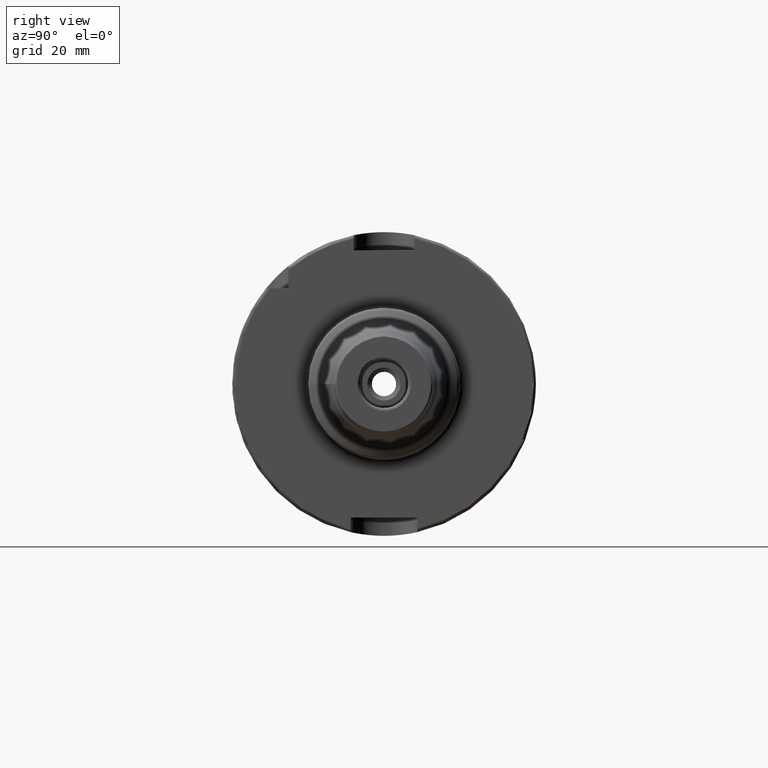
[diagram: clean part render]
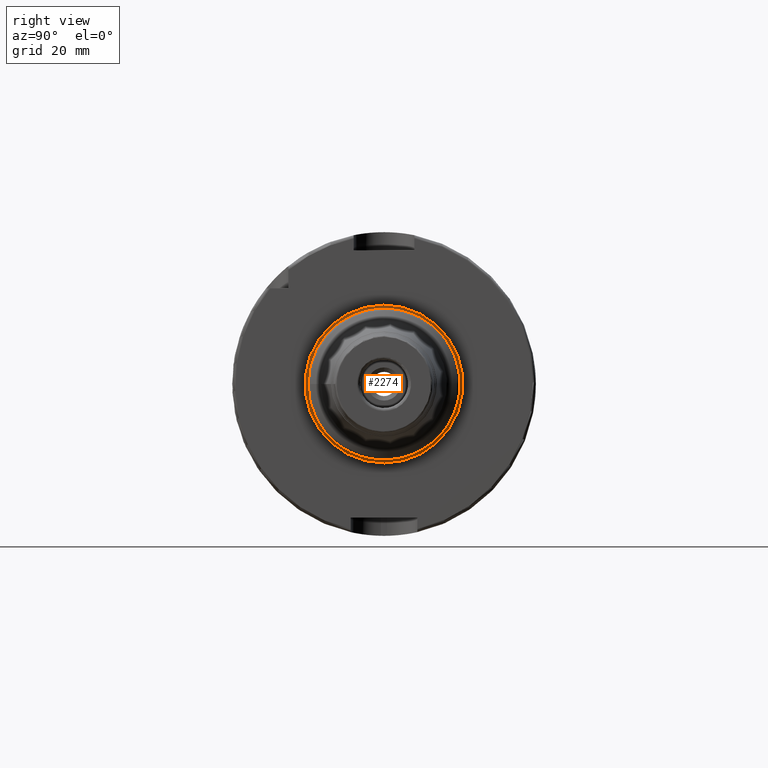
[diagram: same view with one face highlighted and labeled with its STEP entity id]
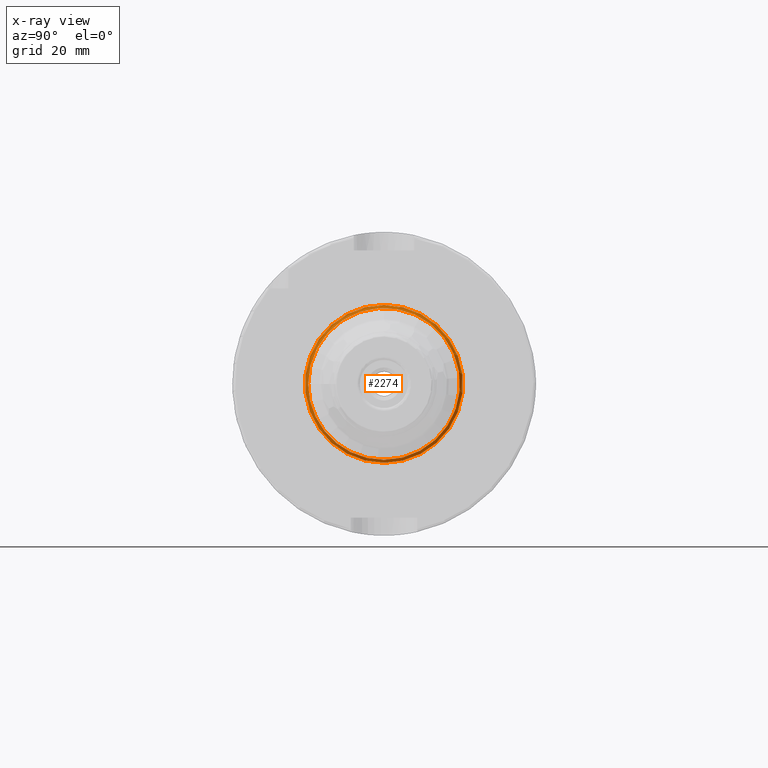
[diagram: x-ray of the same camera — body ghosted, the highlighted face saturated]
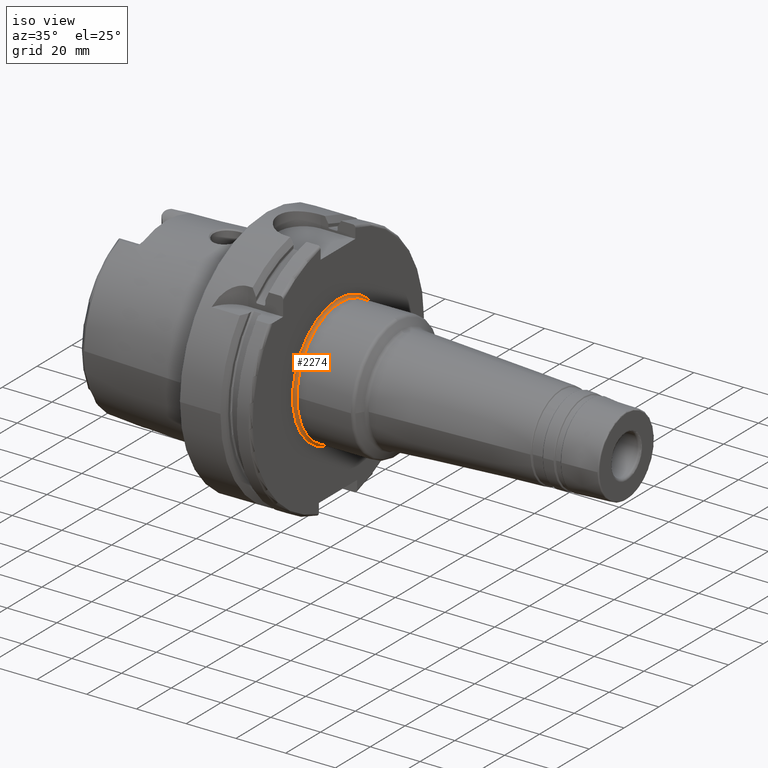
[diagram: same view with one face highlighted and labeled with its STEP entity id]
A machine part, right view. The second image highlights one B-rep face of the part: STEP entity #2274.
The next image is the same camera in x-ray: the body ghosted, the highlighted face saturated — about 0% of this face is hidden behind the body in this view.
A second angle (iso view) of the same face is appended — the face is thin or edge-on in the first view.
In plain terms, the highlighted toroidal blend (fillet) surface has major radius 26 mm and minor (blend) radius 1 mm.
Its self-contained STEP definition (entity closure, byte-faithful):
#433=FACE_OUTER_BOUND('',#569,.T.);
#569=EDGE_LOOP('',(#1536,#1537,#1538,#1539,#1540));
#718=CIRCLE('',#2441,25.);
#719=CIRCLE('',#2442,25.);
#726=CIRCLE('',#2453,1.);
#727=CIRCLE('',#2454,26.);
#896=VERTEX_POINT('',#3531);
#897=VERTEX_POINT('',#3533);
#903=VERTEX_POINT('',#3552);
#1141=EDGE_CURVE('',#897,#896,#718,.T.);
#1142=EDGE_CURVE('',#896,#897,#719,.T.);
#1150=EDGE_CURVE('',#897,#903,#726,.T.);
#1151=EDGE_CURVE('',#903,#903,#727,.T.);
#1536=ORIENTED_EDGE('',*,*,#1142,.T.);
#1537=ORIENTED_EDGE('',*,*,#1150,.T.);
#1538=ORIENTED_EDGE('',*,*,#1151,.T.);
#1539=ORIENTED_EDGE('',*,*,#1150,.F.);
#1540=ORIENTED_EDGE('',*,*,#1141,.T.);
#2233=TOROIDAL_SURFACE('',#2452,26.,1.);
#2274=ADVANCED_FACE('',(#433),#2233,.F.);
#2441=AXIS2_PLACEMENT_3D('',#3534,#2784,#2785);
#2442=AXIS2_PLACEMENT_3D('',#3535,#2786,#2787);
#2452=AXIS2_PLACEMENT_3D('',#3551,#2807,#2808);
#2453=AXIS2_PLACEMENT_3D('',#3553,#2809,#2810);
#2454=AXIS2_PLACEMENT_3D('',#3554,#2811,#2812);
#2784=DIRECTION('center_axis',(-1.,0.,0.));
#2785=DIRECTION('ref_axis',(0.,-1.,-1.22464679914735E-16));
#2786=DIRECTION('center_axis',(-1.,0.,0.));
#2787=DIRECTION('ref_axis',(0.,-1.,-1.22464679914735E-16));
#2807=DIRECTION('center_axis',(-1.,0.,0.));
#2808=DIRECTION('ref_axis',(0.,0.,1.));
#2809=DIRECTION('center_axis',(0.,-1.,1.22464679914735E-16));
#2810=DIRECTION('ref_axis',(0.,-1.22464679914735E-16,-1.));
#2811=DIRECTION('center_axis',(1.,0.,0.));
#2812=DIRECTION('ref_axis',(0.,-1.,-1.22464679914735E-16));
#3531=CARTESIAN_POINT('',(30.,-25.,-3.06161699786838E-15));
#3533=CARTESIAN_POINT('',(30.,-3.06161699786838E-15,-25.));
#3534=CARTESIAN_POINT('Origin',(30.,0.,0.));
#3535=CARTESIAN_POINT('Origin',(30.,0.,0.));
#3551=CARTESIAN_POINT('Origin',(30.,0.,0.));
#3552=CARTESIAN_POINT('',(29.,-3.18408167778312E-15,-26.));
#3553=CARTESIAN_POINT('Origin',(30.,-3.18408167778312E-15,-26.));
#3554=CARTESIAN_POINT('Origin',(29.,0.,0.));